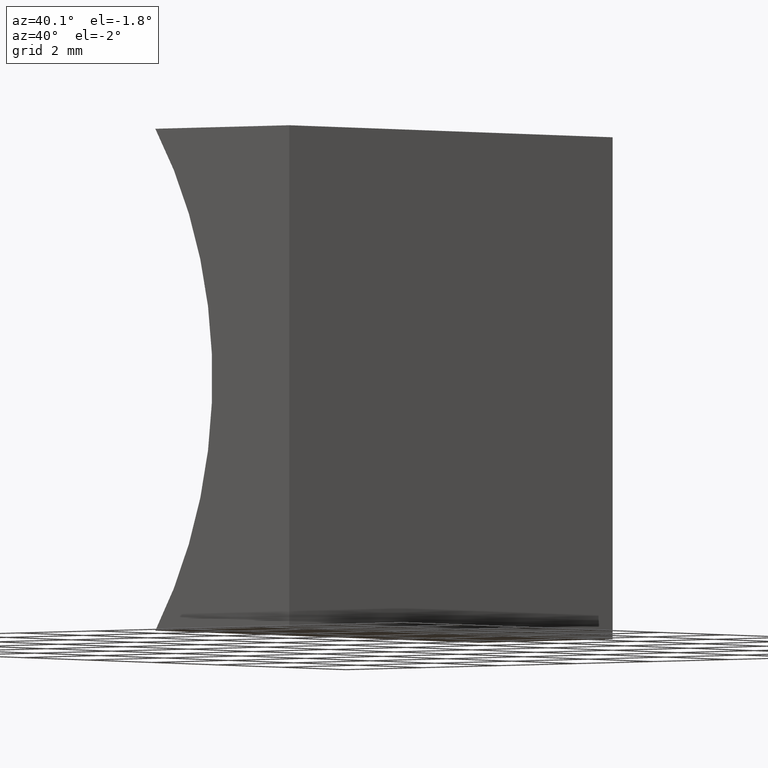
[diagram: clean part render]
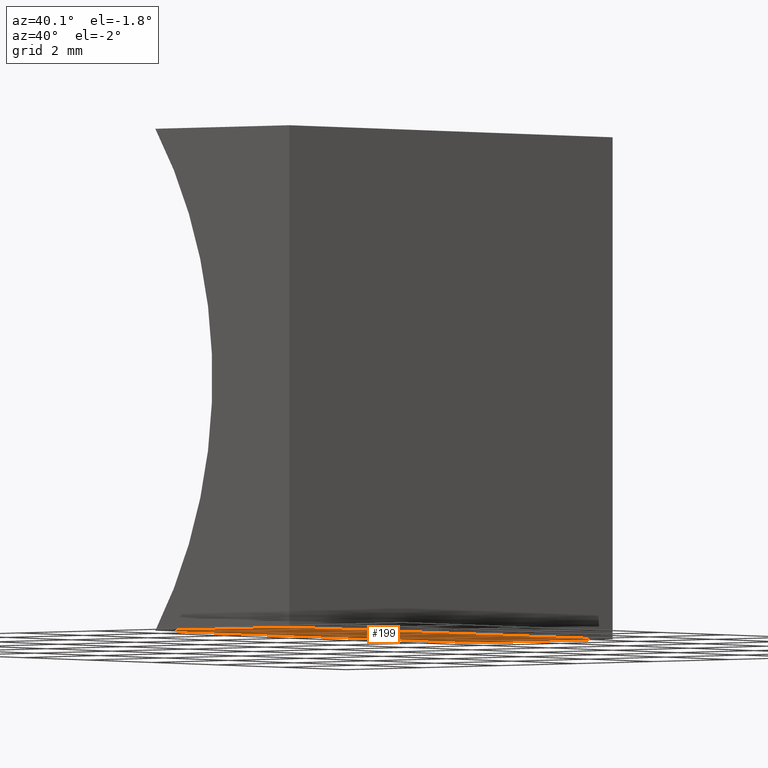
[diagram: same view with one face highlighted and labeled with its STEP entity id]
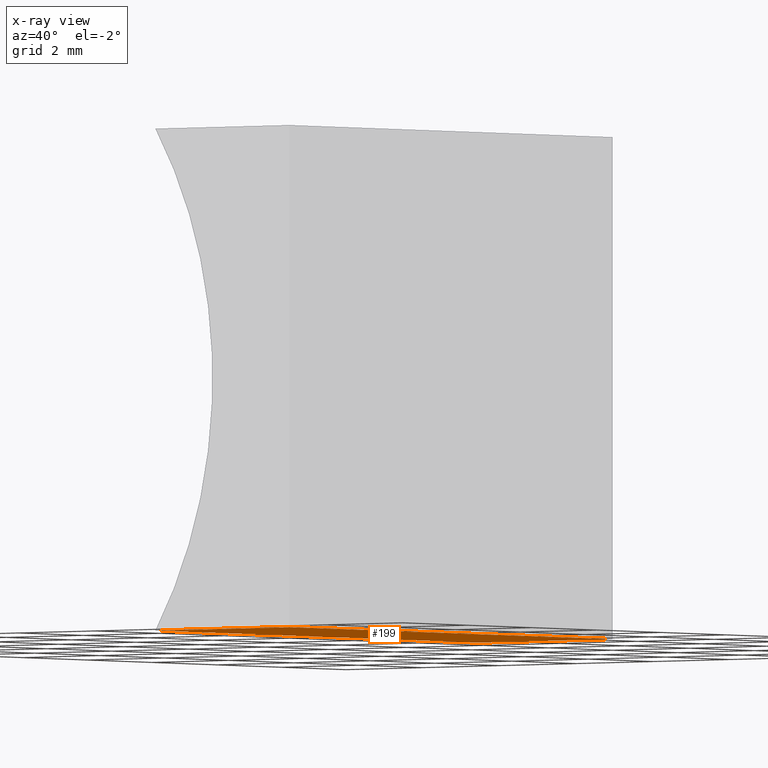
[diagram: x-ray of the same camera — body ghosted, the highlighted face saturated]
A machine part, auxiliary view. The second image highlights one B-rep face of the part: STEP entity #199.
The next image is the same camera in x-ray: the body ghosted, the highlighted face saturated — about 0% of this face is hidden behind the body in this view.
In plain terms, the highlighted planar face has unit normal (0, -0, 1).
Its self-contained STEP definition (entity closure, byte-faithful):
#4 = LINE ( 'NONE', #69, #18 ) ;
#8 = DIRECTION ( 'NONE',  ( 1.701271715540641700E-016, -0.0000000000000000000, 1.000000000000000000 ) ) ;
#9 = LINE ( 'NONE', #144, #12 ) ;
#12 = VECTOR ( 'NONE', #32, 1000.000000000000000 ) ;
#14 = EDGE_LOOP ( 'NONE', ( #67, #156, #117, #56 ) ) ;
#17 = EDGE_CURVE ( 'NONE', #105, #137, #150, .T. ) ;
#18 = VECTOR ( 'NONE', #97, 1000.000000000000000 ) ;
#19 = CARTESIAN_POINT ( 'NONE',  ( 0.0000000000000000000, 10.00000000000000000, 0.0000000000000000000 ) ) ;
#24 = VECTOR ( 'NONE', #160, 1000.000000000000000 ) ;
#31 = FACE_OUTER_BOUND ( 'NONE', #14, .T. ) ;
#32 = DIRECTION ( 'NONE',  ( -1.000000000000000000, 0.0000000000000000000, 1.701271715540642000E-016 ) ) ;
#38 = EDGE_CURVE ( 'NONE', #137, #45, #172, .T. ) ;
#45 = VERTEX_POINT ( 'NONE', #174 ) ;
#46 = CARTESIAN_POINT ( 'NONE',  ( -3.485001628664670600, 10.00000000000000000, 1.734723475976807100E-015 ) ) ;
#56 = ORIENTED_EDGE ( 'NONE', *, *, #17, .T. ) ;
#61 = VECTOR ( 'NONE', #80, 1000.000000000000000 ) ;
#65 = CARTESIAN_POINT ( 'NONE',  ( 0.0000000000000000000, 0.0000000000000000000, 0.0000000000000000000 ) ) ;
#67 = ORIENTED_EDGE ( 'NONE', *, *, #38, .T. ) ;
#69 = CARTESIAN_POINT ( 'NONE',  ( -3.485001628664670600, 10.00000000000000000, 1.734723475976807100E-015 ) ) ;
#71 = EDGE_CURVE ( 'NONE', #105, #100, #9, .T. ) ;
#80 = DIRECTION ( 'NONE',  ( -1.000000000000000000, 0.0000000000000000000, 1.701271715540642000E-016 ) ) ;
#97 = DIRECTION ( 'NONE',  ( -0.0000000000000000000, -1.000000000000000000, -0.0000000000000000000 ) ) ;
#100 = VERTEX_POINT ( 'NONE', #46 ) ;
#105 = VERTEX_POINT ( 'NONE', #148 ) ;
#113 = DIRECTION ( 'NONE',  ( 1.000000000000000000, 0.0000000000000000000, -1.701271715540641700E-016 ) ) ;
#117 = ORIENTED_EDGE ( 'NONE', *, *, #71, .F. ) ;
#125 = CARTESIAN_POINT ( 'NONE',  ( 0.0000000000000000000, 10.00000000000000000, 0.0000000000000000000 ) ) ;
#137 = VERTEX_POINT ( 'NONE', #65 ) ;
#138 = AXIS2_PLACEMENT_3D ( 'NONE', #19, #8, #113 ) ;
#144 = CARTESIAN_POINT ( 'NONE',  ( 0.0000000000000000000, 10.00000000000000000, 0.0000000000000000000 ) ) ;
#148 = CARTESIAN_POINT ( 'NONE',  ( 0.0000000000000000000, 10.00000000000000000, 0.0000000000000000000 ) ) ;
#150 = LINE ( 'NONE', #125, #24 ) ;
#156 = ORIENTED_EDGE ( 'NONE', *, *, #190, .F. ) ;
#160 = DIRECTION ( 'NONE',  ( -0.0000000000000000000, -1.000000000000000000, -0.0000000000000000000 ) ) ;
#172 = LINE ( 'NONE', #175, #61 ) ;
#174 = CARTESIAN_POINT ( 'NONE',  ( -3.485001628664670600, 0.0000000000000000000, 1.734723475976807100E-015 ) ) ;
#175 = CARTESIAN_POINT ( 'NONE',  ( 0.0000000000000000000, 0.0000000000000000000, 0.0000000000000000000 ) ) ;
#190 = EDGE_CURVE ( 'NONE', #100, #45, #4, .T. ) ;
#194 = PLANE ( 'NONE',  #138 ) ;
#199 = ADVANCED_FACE ( 'NONE', ( #31 ), #194, .F. ) ;